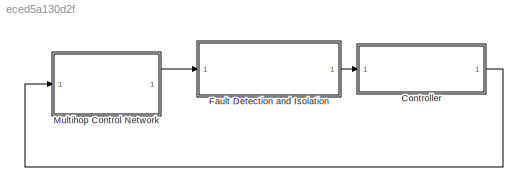
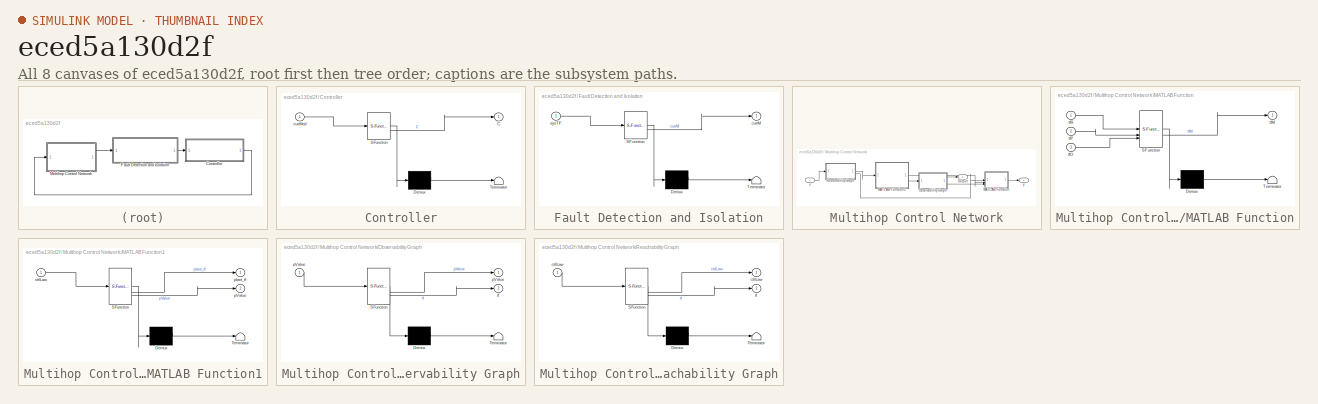
[diagram: thumbnail index - all 8 canvases of the model, root first then tree order]
MODEL slx_eced5a130d2f
KIND model
CONFIG AbsTol = auto
CONFIG EnableMultiTasking = off
CONFIG FixedStep = auto
CONFIG MaxStep = auto
CONFIG MinStep = auto
CONFIG RelTol = 1e-3
CONFIG SampleTimeConstraint = Unconstrained
CONFIG SolverName = VariableStepAuto
CONFIG StartTime = 0.0
CONFIG StopTime = 1
BLOCK [SubSystem] Controller
  ErrorFcn = Stateflow.Translate.translate
  LibrarySourceBlock = simulink/User-Defined\nFunctions/MATLAB Function
  PermitHierarchicalResolution = ExplicitOnly
  SFBlockType = MATLAB Function
  TreatAsAtomicUnit = on
BLOCK [Demux] Controller/ Demux 
  Outputs = 1
BLOCK [S-Function] Controller/ SFunction 
  EnableBusSupport = on
  FunctionName = sf_sfun
  PortCounts = [1 2]
  SFcnIsStateOwnerBlock = off
  SFunctionDeploymentMode = off
  Tag = Stateflow S-Function 4
BLOCK [Terminator] Controller/ Terminator 
BLOCK [Outport] Controller/C
BLOCK [Inport] Controller/currMod
BLOCK [SubSystem] Fault Detection and Isolation
  ErrorFcn = Stateflow.Translate.translate
  LibrarySourceBlock = simulink/User-Defined\nFunctions/MATLAB Function
  PermitHierarchicalResolution = ExplicitOnly
  SFBlockType = MATLAB Function
  TreatAsAtomicUnit = on
BLOCK [Demux] Fault Detection and Isolation/ Demux 
  Outputs = 1
BLOCK [S-Function] Fault Detection and Isolation/ SFunction 
  EnableBusSupport = on
  FunctionName = sf_sfun
  PortCounts = [1 2]
  SFcnIsStateOwnerBlock = off
  SFunctionDeploymentMode = off
  Tag = Stateflow S-Function 3
BLOCK [Terminator] Fault Detection and Isolation/ Terminator 
BLOCK [Outport] Fault Detection and Isolation/currM
BLOCK [Inport] Fault Detection and Isolation/sysTF
BLOCK [SubSystem] Multihop Control Network
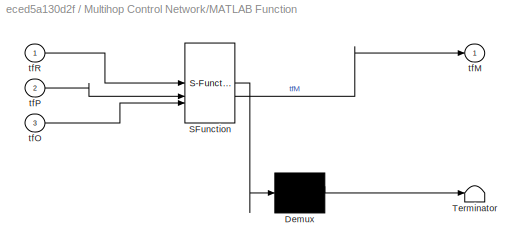
BLOCK [SubSystem] Multihop Control Network/MATLAB Function
  ErrorFcn = Stateflow.Translate.translate
  LibrarySourceBlock = simulink/User-Defined\nFunctions/MATLAB Function
  PermitHierarchicalResolution = ExplicitOnly
  SFBlockType = MATLAB Function
  TreatAsAtomicUnit = on
BLOCK [Demux] Multihop Control Network/MATLAB Function/ Demux 
  Outputs = 1
BLOCK [S-Function] Multihop Control Network/MATLAB Function/ SFunction 
  EnableBusSupport = on
  FunctionName = sf_sfun
  PortCounts = [3 2]
  SFcnIsStateOwnerBlock = off
  SFunctionDeploymentMode = off
  Tag = Stateflow S-Function 5
BLOCK [Terminator] Multihop Control Network/MATLAB Function/ Terminator 
BLOCK [Outport] Multihop Control Network/MATLAB Function/tfM
BLOCK [Inport] Multihop Control Network/MATLAB Function/tfO
  Port = 3
BLOCK [Inport] Multihop Control Network/MATLAB Function/tfP
  Port = 2
BLOCK [Inport] Multihop Control Network/MATLAB Function/tfR
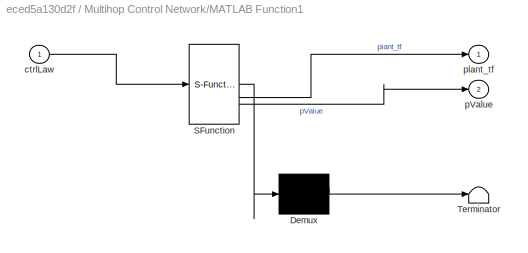
BLOCK [SubSystem] Multihop Control Network/MATLAB Function1
  ErrorFcn = Stateflow.Translate.translate
  LibrarySourceBlock = simulink/User-Defined\nFunctions/MATLAB Function
  PermitHierarchicalResolution = ExplicitOnly
  SFBlockType = MATLAB Function
  TreatAsAtomicUnit = on
BLOCK [Demux] Multihop Control Network/MATLAB Function1/ Demux 
  Outputs = 1
BLOCK [S-Function] Multihop Control Network/MATLAB Function1/ SFunction 
  EnableBusSupport = on
  FunctionName = sf_sfun
  PortCounts = [1 3]
  SFcnIsStateOwnerBlock = off
  SFunctionDeploymentMode = off
  Tag = Stateflow S-Function 6
BLOCK [Terminator] Multihop Control Network/MATLAB Function1/ Terminator 
BLOCK [Inport] Multihop Control Network/MATLAB Function1/ctrlLaw
BLOCK [Outport] Multihop Control Network/MATLAB Function1/pValue
  Port = 2
BLOCK [Outport] Multihop Control Network/MATLAB Function1/plant_tf
BLOCK [SubSystem] Multihop Control Network/Observability Graph
  ErrorFcn = Stateflow.Translate.translate
  LibrarySourceBlock = simulink/User-Defined\nFunctions/MATLAB Function
  PermitHierarchicalResolution = ExplicitOnly
  SFBlockType = MATLAB Function
  TreatAsAtomicUnit = on
BLOCK [Demux] Multihop Control Network/Observability Graph/ Demux 
  Outputs = 1
BLOCK [S-Function] Multihop Control Network/Observability Graph/ SFunction 
  EnableBusSupport = on
  FunctionName = sf_sfun
  PortCounts = [1 3]
  SFcnIsStateOwnerBlock = off
  SFunctionDeploymentMode = off
  Tag = Stateflow S-Function 1
BLOCK [Terminator] Multihop Control Network/Observability Graph/ Terminator 
BLOCK [Outport] Multihop Control Network/Observability Graph/pValue
BLOCK [Inport] Multihop Control Network/Observability Graph/pValue 
BLOCK [Outport] Multihop Control Network/Observability Graph/tf
  Port = 2
BLOCK [Outport] Multihop Control Network/Output
  Port = 2
BLOCK [SubSystem] Multihop Control Network/Reachability Graph
  ErrorFcn = Stateflow.Translate.translate
  LibrarySourceBlock = simulink/User-Defined\nFunctions/MATLAB Function
  PermitHierarchicalResolution = ExplicitOnly
  SFBlockType = MATLAB Function
  TreatAsAtomicUnit = on
BLOCK [Demux] Multihop Control Network/Reachability Graph/ Demux 
  Outputs = 1
BLOCK [S-Function] Multihop Control Network/Reachability Graph/ SFunction 
  EnableBusSupport = on
  FunctionName = sf_sfun
  PortCounts = [1 3]
  SFcnIsStateOwnerBlock = off
  SFunctionDeploymentMode = off
  Tag = Stateflow S-Function 2
BLOCK [Terminator] Multihop Control Network/Reachability Graph/ Terminator 
BLOCK [Outport] Multihop Control Network/Reachability Graph/ctrlLaw
BLOCK [Inport] Multihop Control Network/Reachability Graph/ctrlLaw 
BLOCK [Outport] Multihop Control Network/Reachability Graph/tf
  Port = 2
BLOCK [Inport] Multihop Control Network/u
BLOCK [Outport] Multihop Control Network/y
LINE Controller:1 -> Multihop Control Network:1
LINE Fault Detection and Isolation:1 -> Controller:1
LINE Multihop Control Network/MATLAB Function1:1 -> Multihop Control Network/MATLAB Function:2
LINE Multihop Control Network/MATLAB Function1:2 -> Multihop Control Network/Observability Graph:1
LINE Multihop Control Network/MATLAB Function:1 -> Multihop Control Network/y:1
LINE Multihop Control Network/Observability Graph:1 -> Multihop Control Network/Output:1
LINE Multihop Control Network/Observability Graph:2 -> Multihop Control Network/MATLAB Function:3
LINE Multihop Control Network/Reachability Graph:1 -> Multihop Control Network/MATLAB Function1:1
LINE Multihop Control Network/Reachability Graph:2 -> Multihop Control Network/MATLAB Function:1
LINE Multihop Control Network/u:1 -> Multihop Control Network/Reachability Graph:1
LINE Multihop Control Network:1 -> Fault Detection and Isolation:1
CHART Multihop Control Network/Reachability Graph states=1 transitions=1
  STATE_LABEL 'eML_blk_kernel()'
  STATE_LABEL 'SCRIPT:\nfunction [ctrlLaw,tf] = Gr_Tf(ctrlLaw)\ns = [1,1,1,2,3,4];\nd = [2,3,4,5,5,5];\nsched_func = {[1,2],[1,3],[1,4],[2,5],[3,5],[4,5]};\n[paths,G] = createGraph(s,d,50);\n[tf_empty,transfer_function] = transferFunctionCalculate(paths, sched_func,G);\n\nif tf_empty\n    ctrlLaw = 0;\n    tf = 0; \nelse\n    tf = transfer_function;\nend\n\n\n\n\n'
CHART Fault Detection and Isolation states=1 transitions=1
  STATE_LABEL 'eML_blk_kernel()'
  STATE_LABEL 'SCRIPT:\nfunction currM = FDI(sysTF)\ndisp(sysTF)\ncurrM = sysTF;\n'
CHART Controller states=1 transitions=1
  STATE_LABEL 'eML_blk_kernel()'
  STATE_LABEL 'SCRIPT:\nfunction C = controller(currMod)\n\nC = currMod;\n'
CHART Multihop Control Network/MATLAB Function states=1 transitions=1
  STATE_LABEL 'eML_blk_kernel()'
  STATE_LABEL 'SCRIPT:\nfunction tfM = systemTF(tfR, tfP, tfO)\n    tfM = tfR*tfP*tfO;\n\n'
CHART Multihop Control Network/MATLAB Function1 states=1 transitions=1
  STATE_LABEL 'eML_blk_kernel()'
  STATE_LABEL "SCRIPT:\nfunction [plant_tf,pValue] = plant(ctrlLaw)\n    num_p = 0.5;\n    den_p = [1, -0.8];\n    plant_tf = tf(num_p, den_p, 1, 'variable', 'z'); \n    pValue = num_p;\n    \n"
CHART Multihop Control Network/Observability Graph states=1 transitions=1
  STATE_LABEL 'eML_blk_kernel()'
  STATE_LABEL 'SCRIPT:\nfunction [pValue,tf] = Go_Tf(pValue)\n\ns = [1,1,1,2,3,4];\nd = [2,3,4,5,5,5];\nsched_func = {[1,2],[1,3],[1,4],[2,5],[3,5],[4,5]};\n[paths,G] = createGraph(s,d,50);\n[tf_empty,transfer_function] = transferFunctionCalculate(paths, sched_func,G);\n\nif tf_empty\n    pValue = 0;\n    tf = 0; \nelse\n    tf = transfer_function;\nend\n'
CHART  states=0 transitions=0
CHART  states=0 transitions=0
CHART  states=0 transitions=0
CHART  states=0 transitions=0
CHART  states=0 transitions=0
CHART  states=0 transitions=0
